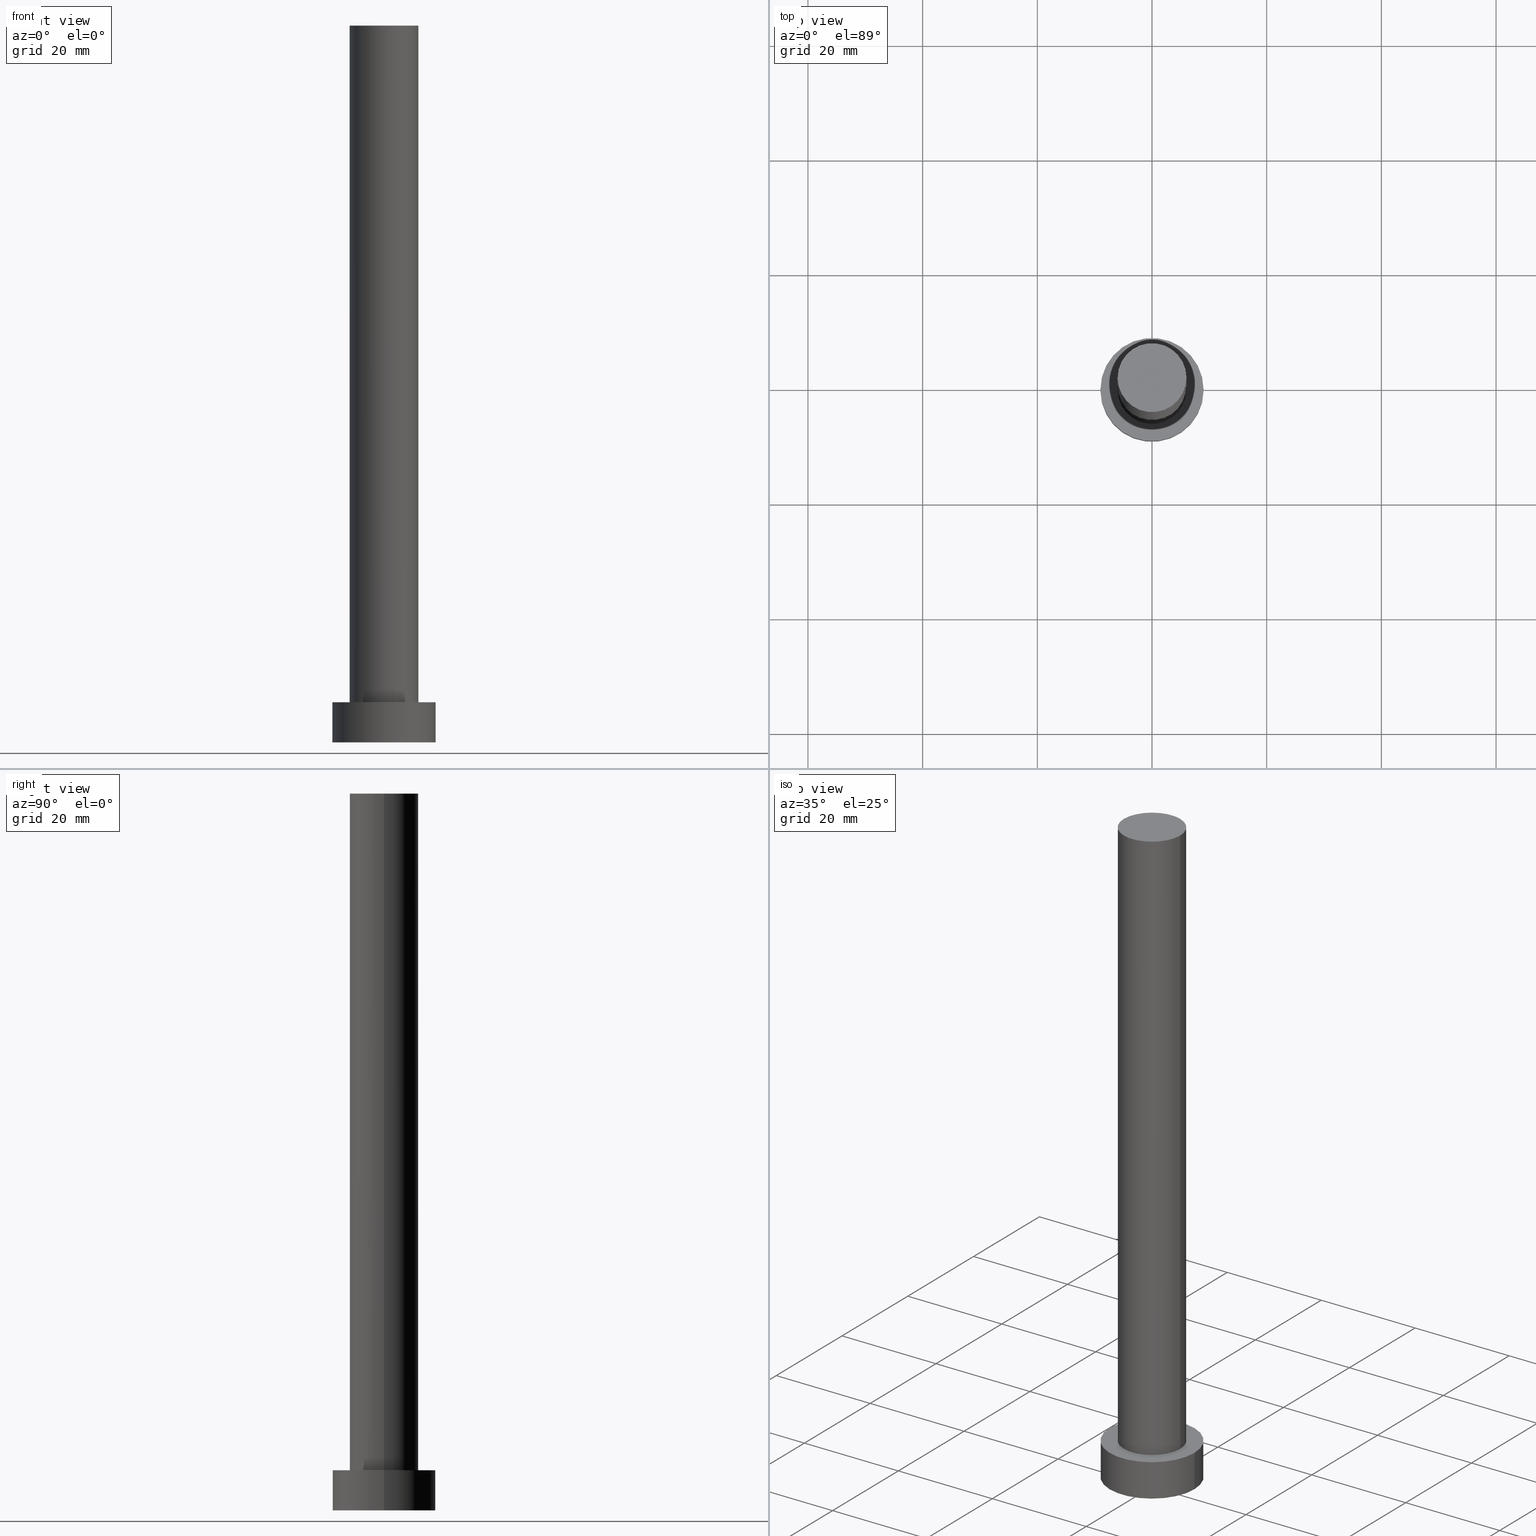
[diagram: canonical four-view strip — front | top / right | iso, engineering-drawing reading convention]
A machine part, canonical four-view strip (front | top / right | iso — engineering-drawing reading convention). The complete STEP part file that produces these views, byte-faithful:
ISO-10303-21;
HEADER;
FILE_DESCRIPTION (( 'STEP AP203' ),
    '1' );
FILE_NAME ('d6b8.STEP',
    '2023-02-13T09:55:53',
    ( '' ),
    ( '' ),
    'SwSTEP 2.0',
    'SolidWorks 2019',
    '' );
FILE_SCHEMA (( 'CONFIG_CONTROL_DESIGN' ));
ENDSEC;

DATA;
#1 = EDGE_CURVE ( 'NONE', #31, #81, #22, .T. ) ;
#2 = VECTOR ( 'NONE', #173, 1000.000000000000000 ) ;
#3 = PLANE ( 'NONE',  #156 ) ;
#4 = EDGE_LOOP ( 'NONE', ( #79, #113 ) ) ;
#5 = AXIS2_PLACEMENT_3D ( 'NONE', #253, #177, #131 ) ;
#6 = CARTESIAN_POINT ( 'NONE',  ( 0.000000000000000000, 0.000000000000000000, 0.000000000000000000 ) ) ;
#7 = VERTEX_POINT ( 'NONE', #188 ) ;
#8 = CALENDAR_DATE ( 2023, 13, 2 ) ;
#9 = CIRCLE ( 'NONE', #166, 9.000000000000000000 ) ;
#10 = CYLINDRICAL_SURFACE ( 'NONE', #179, 6.000000000000000888 ) ;
#11 = CARTESIAN_POINT ( 'NONE',  ( 0.000000000000000000, 0.000000000000000000, 125.0000000000000000 ) ) ;
#12 = COORDINATED_UNIVERSAL_TIME_OFFSET ( 1, 0, .AHEAD. ) ;
#13 = LINE ( 'NONE', #229, #47 ) ;
#14 = CALENDAR_DATE ( 2023, 13, 2 ) ;
#15 = FACE_OUTER_BOUND ( 'NONE', #96, .T. ) ;
#16 = DIRECTION ( 'NONE',  ( 0.000000000000000000, 0.000000000000000000, 1.000000000000000000 ) ) ;
#17 = APPROVAL ( #184, 'NEUR�EN�' ) ;
#18 = ORIENTED_EDGE ( 'NONE', *, *, #149, .F. ) ;
#19 = ORIENTED_EDGE ( 'NONE', *, *, #160, .T. ) ;
#20 = EDGE_CURVE ( 'NONE', #178, #77, #9, .T. ) ;
#21 = CARTESIAN_POINT ( 'NONE',  ( 0.000000000000000000, 0.000000000000000000, 125.0000000000000000 ) ) ;
#22 = LINE ( 'NONE', #241, #146 ) ;
#23 = APPLICATION_CONTEXT ( 'configuration controlled 3d designs of mechanical parts and assemblies' ) ;
#24 = APPROVAL_ROLE ( '' ) ;
#25 =( NAMED_UNIT ( * ) SI_UNIT ( $, .STERADIAN. ) SOLID_ANGLE_UNIT ( ) );
#26 = EDGE_LOOP ( 'NONE', ( #236, #98 ) ) ;
#27 = COORDINATED_UNIVERSAL_TIME_OFFSET ( 1, 0, .AHEAD. ) ;
#28 = DIRECTION ( 'NONE',  ( 1.000000000000000000, 0.000000000000000000, 0.000000000000000000 ) ) ;
#29 = CIRCLE ( 'NONE', #78, 9.000000000000000000 ) ;
#30 = DIRECTION ( 'NONE',  ( 1.000000000000000000, 0.000000000000000000, 0.000000000000000000 ) ) ;
#31 = VERTEX_POINT ( 'NONE', #120 ) ;
#32 = EDGE_CURVE ( 'NONE', #31, #7, #136, .T. ) ;
#33 = CARTESIAN_POINT ( 'NONE',  ( 0.000000000000000000, 0.000000000000000000, 0.000000000000000000 ) ) ;
#34 = MANIFOLD_SOLID_BREP ( 'P�idat vysunut�m3', #64 ) ;
#35 = COORDINATED_UNIVERSAL_TIME_OFFSET ( 1, 0, .AHEAD. ) ;
#36 = DIRECTION ( 'NONE',  ( 0.000000000000000000, 0.000000000000000000, 1.000000000000000000 ) ) ;
#37 = ADVANCED_FACE ( 'NONE', ( #93, #15 ), #168, .T. ) ;
#38 = ORIENTED_EDGE ( 'NONE', *, *, #142, .F. ) ;
#39 = ORIENTED_EDGE ( 'NONE', *, *, #1, .F. ) ;
#40 = PERSON_AND_ORGANIZATION ( #244, #151 ) ;
#41 = CARTESIAN_POINT ( 'NONE',  ( -9.000000000000000000, 0.000000000000000000, 0.000000000000000000 ) ) ;
#42 = DIRECTION ( 'NONE',  ( -0.000000000000000000, -0.000000000000000000, -1.000000000000000000 ) ) ;
#43 = APPROVAL_PERSON_ORGANIZATION ( #85, #17, #24 ) ;
#44 =( LENGTH_UNIT ( ) NAMED_UNIT ( * ) SI_UNIT ( .MILLI., .METRE. ) );
#45 = ADVANCED_BREP_SHAPE_REPRESENTATION ( 'd6b8', ( #34, #196 ), #221 ) ;
#46 = CC_DESIGN_PERSON_AND_ORGANIZATION_ASSIGNMENT ( #213, #90, ( #73 ) ) ;
#47 = VECTOR ( 'NONE', #129, 1000.000000000000000 ) ;
#48 = EDGE_LOOP ( 'NONE', ( #199, #220, #197, #51 ) ) ;
#49 = CARTESIAN_POINT ( 'NONE',  ( 0.000000000000000000, 0.000000000000000000, 125.0000000000000000 ) ) ;
#50 = CC_DESIGN_SECURITY_CLASSIFICATION ( #243, ( #73 ) ) ;
#51 = ORIENTED_EDGE ( 'NONE', *, *, #103, .F. ) ;
#52 = CARTESIAN_POINT ( 'NONE',  ( -9.000000000000000000, 0.000000000000000000, 7.000000000000000000 ) ) ;
#53 = CIRCLE ( 'NONE', #252, 9.000000000000000000 ) ;
#54 = LOCAL_TIME ( 10, 55, 53.00000000000000000, #35 ) ;
#55 = PERSON_AND_ORGANIZATION_ROLE ( 'creator' ) ;
#56 = PRODUCT_DEFINITION_SHAPE ( 'NONE', 'NONE',  #65 ) ;
#57 = APPROVAL_ROLE ( '' ) ;
#58 = DIRECTION ( 'NONE',  ( 1.000000000000000000, 0.000000000000000000, 0.000000000000000000 ) ) ;
#59 = CARTESIAN_POINT ( 'NONE',  ( 0.000000000000000000, 0.000000000000000000, 0.000000000000000000 ) ) ;
#60 = VERTEX_POINT ( 'NONE', #111 ) ;
#61 = AXIS2_PLACEMENT_3D ( 'NONE', #163, #246, #94 ) ;
#62 = ORIENTED_EDGE ( 'NONE', *, *, #103, .T. ) ;
#63 = CIRCLE ( 'NONE', #209, 6.000000000000000888 ) ;
#64 = CLOSED_SHELL ( 'NONE', ( #238, #233, #165, #37, #194, #180, #222 ) ) ;
#65 = PRODUCT_DEFINITION ( 'NEZN�M�', '', #73, #187 ) ;
#66 = PERSON_AND_ORGANIZATION ( #244, #151 ) ;
#67 = CARTESIAN_POINT ( 'NONE',  ( 0.000000000000000000, 0.000000000000000000, 125.0000000000000000 ) ) ;
#68 = APPROVAL_DATE_TIME ( #167, #182 ) ;
#69 = DIRECTION ( 'NONE',  ( 0.000000000000000000, 0.000000000000000000, 1.000000000000000000 ) ) ;
#70 = CARTESIAN_POINT ( 'NONE',  ( 0.000000000000000000, 0.000000000000000000, 7.000000000000000000 ) ) ;
#71 = LINE ( 'NONE', #247, #217 ) ;
#72 = ORIENTED_EDGE ( 'NONE', *, *, #172, .F. ) ;
#73 = PRODUCT_DEFINITION_FORMATION_WITH_SPECIFIED_SOURCE ( 'LIBOVOLN�', '', #232, .NOT_KNOWN. ) ;
#74 = SECURITY_CLASSIFICATION_LEVEL ( 'unclassified' ) ;
#75 = CARTESIAN_POINT ( 'NONE',  ( -6.000000000000000888, 0.000000000000000000, 7.000000000000000000 ) ) ;
#76 = FACE_OUTER_BOUND ( 'NONE', #48, .T. ) ;
#77 = VERTEX_POINT ( 'NONE', #170 ) ;
#78 = AXIS2_PLACEMENT_3D ( 'NONE', #101, #95, #219 ) ;
#79 = ORIENTED_EDGE ( 'NONE', *, *, #149, .T. ) ;
#80 = EDGE_CURVE ( 'NONE', #77, #60, #212, .T. ) ;
#81 = VERTEX_POINT ( 'NONE', #210 ) ;
#82 = EDGE_LOOP ( 'NONE', ( #200, #183, #62, #249 ) ) ;
#83 =( NAMED_UNIT ( * ) PLANE_ANGLE_UNIT ( ) SI_UNIT ( $, .RADIAN. ) );
#84 = LOCAL_TIME ( 10, 55, 53.00000000000000000, #245 ) ;
#85 = PERSON_AND_ORGANIZATION ( #244, #151 ) ;
#86 = EDGE_CURVE ( 'NONE', #153, #81, #237, .T. ) ;
#87 = CARTESIAN_POINT ( 'NONE',  ( 0.000000000000000000, 0.000000000000000000, 7.000000000000000000 ) ) ;
#88 = LOCAL_TIME ( 10, 55, 53.00000000000000000, #27 ) ;
#89 = DATE_AND_TIME ( #8, #88 ) ;
#90 = PERSON_AND_ORGANIZATION_ROLE ( 'design_supplier' ) ;
#91 = CC_DESIGN_PERSON_AND_ORGANIZATION_ASSIGNMENT ( #250, #55, ( #73 ) ) ;
#92 = DATE_AND_TIME ( #14, #54 ) ;
#93 = FACE_BOUND ( 'NONE', #185, .T. ) ;
#94 = DIRECTION ( 'NONE',  ( 1.000000000000000000, 0.000000000000000000, -0.000000000000000000 ) ) ;
#95 = DIRECTION ( 'NONE',  ( 0.000000000000000000, 0.000000000000000000, 1.000000000000000000 ) ) ;
#96 = EDGE_LOOP ( 'NONE', ( #102, #19 ) ) ;
#97 = CIRCLE ( 'NONE', #240, 9.000000000000000000 ) ;
#98 = ORIENTED_EDGE ( 'NONE', *, *, #119, .F. ) ;
#99 = FACE_OUTER_BOUND ( 'NONE', #4, .T. ) ;
#100 = EDGE_LOOP ( 'NONE', ( #39, #18, #114, #135 ) ) ;
#101 = CARTESIAN_POINT ( 'NONE',  ( 0.000000000000000000, 0.000000000000000000, 0.000000000000000000 ) ) ;
#102 = ORIENTED_EDGE ( 'NONE', *, *, #20, .T. ) ;
#103 = EDGE_CURVE ( 'NONE', #178, #254, #71, .T. ) ;
#104 = DIRECTION ( 'NONE',  ( 1.000000000000000000, 0.000000000000000000, -0.000000000000000000 ) ) ;
#105 = DIRECTION ( 'NONE',  ( 1.000000000000000000, 0.000000000000000000, 0.000000000000000000 ) ) ;
#106 = SHAPE_DEFINITION_REPRESENTATION ( #56, #45 ) ;
#107 = CYLINDRICAL_SURFACE ( 'NONE', #115, 9.000000000000000000 ) ;
#108 = CC_DESIGN_APPROVAL ( #182, ( #73 ) ) ;
#109 = APPROVAL_STATUS ( 'not_yet_approved' ) ;
#110 = CC_DESIGN_PERSON_AND_ORGANIZATION_ASSIGNMENT ( #40, #118, ( #232 ) ) ;
#111 = CARTESIAN_POINT ( 'NONE',  ( 9.000000000000000000, 1.102182119232617714E-15, 0.000000000000000000 ) ) ;
#112 = DIRECTION ( 'NONE',  ( 0.000000000000000000, 0.000000000000000000, 1.000000000000000000 ) ) ;
#113 = ORIENTED_EDGE ( 'NONE', *, *, #32, .T. ) ;
#114 = ORIENTED_EDGE ( 'NONE', *, *, #172, .T. ) ;
#115 = AXIS2_PLACEMENT_3D ( 'NONE', #70, #145, #231 ) ;
#116 = APPROVAL ( #143, 'NEUR�EN�' ) ;
#117 = DIRECTION ( 'NONE',  ( 0.000000000000000000, 0.000000000000000000, 1.000000000000000000 ) ) ;
#118 = PERSON_AND_ORGANIZATION_ROLE ( 'design_owner' ) ;
#119 = EDGE_CURVE ( 'NONE', #60, #254, #53, .T. ) ;
#120 = CARTESIAN_POINT ( 'NONE',  ( 6.000000000000000888, 7.347880794884120722E-16, 125.0000000000000000 ) ) ;
#121 = ORIENTED_EDGE ( 'NONE', *, *, #86, .F. ) ;
#122 = PRODUCT_RELATED_PRODUCT_CATEGORY ( 'detail', '', ( #232 ) ) ;
#123 = FACE_OUTER_BOUND ( 'NONE', #100, .T. ) ;
#124 = CC_DESIGN_PERSON_AND_ORGANIZATION_ASSIGNMENT ( #161, #189, ( #243 ) ) ;
#125 = APPLICATION_CONTEXT ( 'configuration controlled 3d designs of mechanical parts and assemblies' ) ;
#126 = PERSON_AND_ORGANIZATION ( #244, #151 ) ;
#127 = CARTESIAN_POINT ( 'NONE',  ( 0.000000000000000000, 0.000000000000000000, 7.000000000000000000 ) ) ;
#128 = CALENDAR_DATE ( 2023, 13, 2 ) ;
#129 = DIRECTION ( 'NONE',  ( -0.000000000000000000, -0.000000000000000000, -1.000000000000000000 ) ) ;
#130 = EDGE_LOOP ( 'NONE', ( #248, #152, #216, #72 ) ) ;
#131 = DIRECTION ( 'NONE',  ( -1.000000000000000000, 0.000000000000000000, 0.000000000000000000 ) ) ;
#132 = CC_DESIGN_DATE_AND_TIME_ASSIGNMENT ( #190, #144, ( #65 ) ) ;
#133 = DIRECTION ( 'NONE',  ( -1.000000000000000000, 0.000000000000000000, 0.000000000000000000 ) ) ;
#134 = LOCAL_TIME ( 10, 55, 53.00000000000000000, #208 ) ;
#135 = ORIENTED_EDGE ( 'NONE', *, *, #86, .T. ) ;
#136 = CIRCLE ( 'NONE', #141, 6.000000000000000888 ) ;
#137 = APPROVAL_PERSON_ORGANIZATION ( #234, #116, #57 ) ;
#138 = APPROVAL_DATE_TIME ( #181, #17 ) ;
#139 = DIRECTION ( 'NONE',  ( 1.000000000000000000, 0.000000000000000000, 0.000000000000000000 ) ) ;
#140 = AXIS2_PLACEMENT_3D ( 'NONE', #59, #112, #198 ) ;
#141 = AXIS2_PLACEMENT_3D ( 'NONE', #67, #227, #164 ) ;
#142 = EDGE_CURVE ( 'NONE', #81, #153, #157, .T. ) ;
#143 = APPROVAL_STATUS ( 'not_yet_approved' ) ;
#144 = DATE_TIME_ROLE ( 'creation_date' ) ;
#145 = DIRECTION ( 'NONE',  ( -0.000000000000000000, -0.000000000000000000, -1.000000000000000000 ) ) ;
#146 = VECTOR ( 'NONE', #42, 1000.000000000000000 ) ;
#147 = DIRECTION ( 'NONE',  ( -0.000000000000000000, -0.000000000000000000, -1.000000000000000000 ) ) ;
#148 = CARTESIAN_POINT ( 'NONE',  ( 0.000000000000000000, 0.000000000000000000, 7.000000000000000000 ) ) ;
#149 = EDGE_CURVE ( 'NONE', #7, #31, #63, .T. ) ;
#150 = FACE_OUTER_BOUND ( 'NONE', #130, .T. ) ;
#151 = ORGANIZATION ( 'NEUR�EN�', 'NEUR�EN�', '' ) ;
#152 = ORIENTED_EDGE ( 'NONE', *, *, #1, .T. ) ;
#153 = VERTEX_POINT ( 'NONE', #75 ) ;
#154 = AXIS2_PLACEMENT_3D ( 'NONE', #127, #191, #195 ) ;
#155 = CARTESIAN_POINT ( 'NONE',  ( 0.000000000000000000, 0.000000000000000000, 125.0000000000000000 ) ) ;
#156 = AXIS2_PLACEMENT_3D ( 'NONE', #155, #239, #104 ) ;
#157 = CIRCLE ( 'NONE', #174, 6.000000000000000888 ) ;
#158 = CALENDAR_DATE ( 2023, 13, 2 ) ;
#159 = APPLICATION_PROTOCOL_DEFINITION ( 'international standard', 'config_control_design', 1994, #125 ) ;
#160 = EDGE_CURVE ( 'NONE', #77, #178, #97, .T. ) ;
#161 = PERSON_AND_ORGANIZATION ( #244, #151 ) ;
#162 = APPROVAL_PERSON_ORGANIZATION ( #126, #182, #192 ) ;
#163 = CARTESIAN_POINT ( 'NONE',  ( 0.000000000000000000, 0.000000000000000000, 7.000000000000000000 ) ) ;
#164 = DIRECTION ( 'NONE',  ( 1.000000000000000000, 0.000000000000000000, 0.000000000000000000 ) ) ;
#165 = ADVANCED_FACE ( 'NONE', ( #235 ), #107, .T. ) ;
#166 = AXIS2_PLACEMENT_3D ( 'NONE', #87, #117, #139 ) ;
#167 = DATE_AND_TIME ( #186, #251 ) ;
#168 = PLANE ( 'NONE',  #61 ) ;
#169 = DATE_TIME_ROLE ( 'classification_date' ) ;
#170 = CARTESIAN_POINT ( 'NONE',  ( 9.000000000000000000, 1.102182119232617714E-15, 7.000000000000000000 ) ) ;
#171 = CC_DESIGN_APPROVAL ( #116, ( #243 ) ) ;
#172 = EDGE_CURVE ( 'NONE', #7, #153, #13, .T. ) ;
#173 = DIRECTION ( 'NONE',  ( -0.000000000000000000, -0.000000000000000000, -1.000000000000000000 ) ) ;
#174 = AXIS2_PLACEMENT_3D ( 'NONE', #214, #16, #30 ) ;
#175 = CYLINDRICAL_SURFACE ( 'NONE', #5, 9.000000000000000000 ) ;
#176 = FACE_OUTER_BOUND ( 'NONE', #26, .T. ) ;
#177 = DIRECTION ( 'NONE',  ( -0.000000000000000000, -0.000000000000000000, -1.000000000000000000 ) ) ;
#178 = VERTEX_POINT ( 'NONE', #52 ) ;
#179 = AXIS2_PLACEMENT_3D ( 'NONE', #21, #202, #133 ) ;
#180 = ADVANCED_FACE ( 'NONE', ( #123 ), #10, .T. ) ;
#181 = DATE_AND_TIME ( #158, #84 ) ;
#182 = APPROVAL ( #109, 'NEUR�EN�' ) ;
#183 = ORIENTED_EDGE ( 'NONE', *, *, #20, .F. ) ;
#184 = APPROVAL_STATUS ( 'not_yet_approved' ) ;
#185 = EDGE_LOOP ( 'NONE', ( #121, #38 ) ) ;
#186 = CALENDAR_DATE ( 2023, 13, 2 ) ;
#187 = DESIGN_CONTEXT ( 'detailed design', #23, 'design' ) ;
#188 = CARTESIAN_POINT ( 'NONE',  ( -6.000000000000000888, 0.000000000000000000, 125.0000000000000000 ) ) ;
#189 = PERSON_AND_ORGANIZATION_ROLE ( 'classification_officer' ) ;
#190 = DATE_AND_TIME ( #128, #134 ) ;
#191 = DIRECTION ( 'NONE',  ( 0.000000000000000000, 0.000000000000000000, 1.000000000000000000 ) ) ;
#192 = APPROVAL_ROLE ( '' ) ;
#193 = DIRECTION ( 'NONE',  ( 0.000000000000000000, 0.000000000000000000, 1.000000000000000000 ) ) ;
#194 = ADVANCED_FACE ( 'NONE', ( #176 ), #203, .F. ) ;
#195 = DIRECTION ( 'NONE',  ( 1.000000000000000000, 0.000000000000000000, 0.000000000000000000 ) ) ;
#196 = AXIS2_PLACEMENT_3D ( 'NONE', #6, #207, #105 ) ;
#197 = ORIENTED_EDGE ( 'NONE', *, *, #119, .T. ) ;
#198 = DIRECTION ( 'NONE',  ( 1.000000000000000000, 0.000000000000000000, -0.000000000000000000 ) ) ;
#199 = ORIENTED_EDGE ( 'NONE', *, *, #160, .F. ) ;
#200 = ORIENTED_EDGE ( 'NONE', *, *, #80, .F. ) ;
#201 = CYLINDRICAL_SURFACE ( 'NONE', #255, 6.000000000000000888 ) ;
#202 = DIRECTION ( 'NONE',  ( -0.000000000000000000, -0.000000000000000000, -1.000000000000000000 ) ) ;
#203 = PLANE ( 'NONE',  #140 ) ;
#204 = CC_DESIGN_PERSON_AND_ORGANIZATION_ASSIGNMENT ( #66, #211, ( #65 ) ) ;
#205 = APPLICATION_PROTOCOL_DEFINITION ( 'international standard', 'config_control_design', 1994, #23 ) ;
#206 = DIRECTION ( 'NONE',  ( -0.000000000000000000, -0.000000000000000000, -1.000000000000000000 ) ) ;
#207 = DIRECTION ( 'NONE',  ( 0.000000000000000000, 0.000000000000000000, 1.000000000000000000 ) ) ;
#208 = COORDINATED_UNIVERSAL_TIME_OFFSET ( 1, 0, .AHEAD. ) ;
#209 = AXIS2_PLACEMENT_3D ( 'NONE', #11, #36, #58 ) ;
#210 = CARTESIAN_POINT ( 'NONE',  ( 6.000000000000000888, 7.347880794884120722E-16, 7.000000000000000000 ) ) ;
#211 = PERSON_AND_ORGANIZATION_ROLE ( 'creator' ) ;
#212 = LINE ( 'NONE', #218, #2 ) ;
#213 = PERSON_AND_ORGANIZATION ( #244, #151 ) ;
#214 = CARTESIAN_POINT ( 'NONE',  ( 0.000000000000000000, 0.000000000000000000, 7.000000000000000000 ) ) ;
#215 = EDGE_CURVE ( 'NONE', #254, #60, #29, .T. ) ;
#216 = ORIENTED_EDGE ( 'NONE', *, *, #142, .T. ) ;
#217 = VECTOR ( 'NONE', #147, 1000.000000000000000 ) ;
#218 = CARTESIAN_POINT ( 'NONE',  ( 9.000000000000000000, 1.102182119232617714E-15, 7.000000000000000000 ) ) ;
#219 = DIRECTION ( 'NONE',  ( 1.000000000000000000, 0.000000000000000000, 0.000000000000000000 ) ) ;
#220 = ORIENTED_EDGE ( 'NONE', *, *, #80, .T. ) ;
#221 =( GEOMETRIC_REPRESENTATION_CONTEXT ( 3 ) GLOBAL_UNCERTAINTY_ASSIGNED_CONTEXT ( ( #226 ) ) GLOBAL_UNIT_ASSIGNED_CONTEXT ( ( #44, #83, #25 ) ) REPRESENTATION_CONTEXT ( 'NONE', 'WORKASPACE' ) );
#222 = ADVANCED_FACE ( 'NONE', ( #99 ), #3, .T. ) ;
#223 = MECHANICAL_CONTEXT ( 'NONE', #125, 'mechanical' ) ;
#224 = DIRECTION ( 'NONE',  ( -1.000000000000000000, 0.000000000000000000, 0.000000000000000000 ) ) ;
#225 = CC_DESIGN_APPROVAL ( #17, ( #65 ) ) ;
#226 = UNCERTAINTY_MEASURE_WITH_UNIT (LENGTH_MEASURE( 1.000000000000000082E-05 ), #44, 'distance_accuracy_value', 'NONE');
#227 = DIRECTION ( 'NONE',  ( 0.000000000000000000, 0.000000000000000000, 1.000000000000000000 ) ) ;
#228 = APPROVAL_DATE_TIME ( #89, #116 ) ;
#229 = CARTESIAN_POINT ( 'NONE',  ( -6.000000000000000888, 0.000000000000000000, 125.0000000000000000 ) ) ;
#230 = DIRECTION ( 'NONE',  ( 1.000000000000000000, 0.000000000000000000, 0.000000000000000000 ) ) ;
#231 = DIRECTION ( 'NONE',  ( -1.000000000000000000, 0.000000000000000000, 0.000000000000000000 ) ) ;
#232 = PRODUCT ( 'd6b8', 'd6b8', '', ( #223 ) ) ;
#233 = ADVANCED_FACE ( 'NONE', ( #76 ), #175, .T. ) ;
#234 = PERSON_AND_ORGANIZATION ( #244, #151 ) ;
#235 = FACE_OUTER_BOUND ( 'NONE', #82, .T. ) ;
#236 = ORIENTED_EDGE ( 'NONE', *, *, #215, .F. ) ;
#237 = CIRCLE ( 'NONE', #154, 6.000000000000000888 ) ;
#238 = ADVANCED_FACE ( 'NONE', ( #150 ), #201, .T. ) ;
#239 = DIRECTION ( 'NONE',  ( 0.000000000000000000, 0.000000000000000000, 1.000000000000000000 ) ) ;
#240 = AXIS2_PLACEMENT_3D ( 'NONE', #148, #69, #28 ) ;
#241 = CARTESIAN_POINT ( 'NONE',  ( 6.000000000000000888, 7.347880794884120722E-16, 125.0000000000000000 ) ) ;
#242 = CC_DESIGN_DATE_AND_TIME_ASSIGNMENT ( #92, #169, ( #243 ) ) ;
#243 = SECURITY_CLASSIFICATION ( '', '', #74 ) ;
#244 = PERSON ( 'NEUR�EN�', 'NEUR�EN�', 'NEUR�EN�', ('NEUR�EN�'), ('NEUR�EN�'), ('NEUR�EN�') ) ;
#245 = COORDINATED_UNIVERSAL_TIME_OFFSET ( 1, 0, .AHEAD. ) ;
#246 = DIRECTION ( 'NONE',  ( 0.000000000000000000, 0.000000000000000000, 1.000000000000000000 ) ) ;
#247 = CARTESIAN_POINT ( 'NONE',  ( -9.000000000000000000, 0.000000000000000000, 7.000000000000000000 ) ) ;
#248 = ORIENTED_EDGE ( 'NONE', *, *, #32, .F. ) ;
#249 = ORIENTED_EDGE ( 'NONE', *, *, #215, .T. ) ;
#250 = PERSON_AND_ORGANIZATION ( #244, #151 ) ;
#251 = LOCAL_TIME ( 10, 55, 53.00000000000000000, #12 ) ;
#252 = AXIS2_PLACEMENT_3D ( 'NONE', #33, #193, #230 ) ;
#253 = CARTESIAN_POINT ( 'NONE',  ( 0.000000000000000000, 0.000000000000000000, 7.000000000000000000 ) ) ;
#254 = VERTEX_POINT ( 'NONE', #41 ) ;
#255 = AXIS2_PLACEMENT_3D ( 'NONE', #49, #206, #224 ) ;
ENDSEC;
END-ISO-10303-21;
